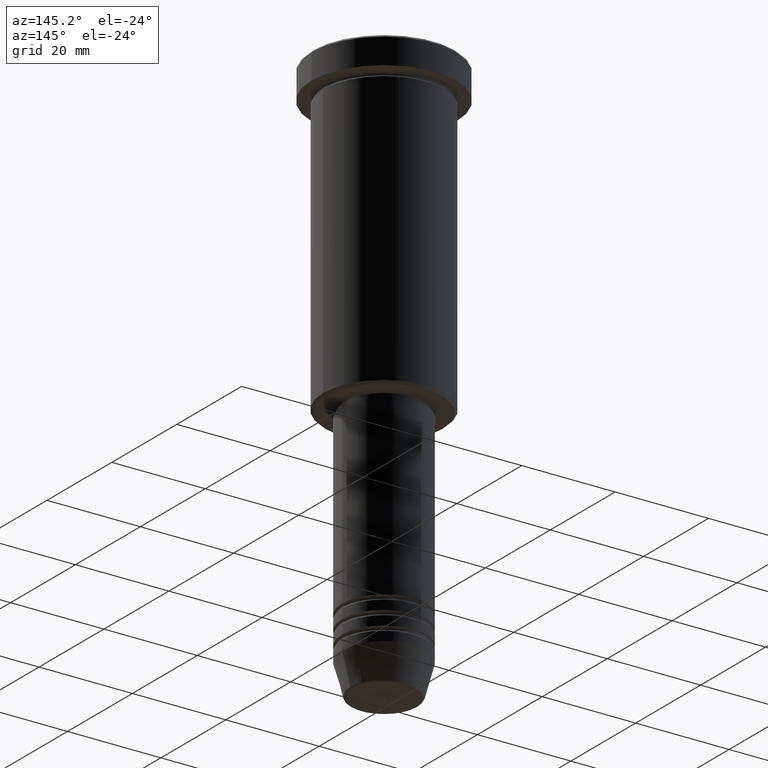
[diagram: clean part render]
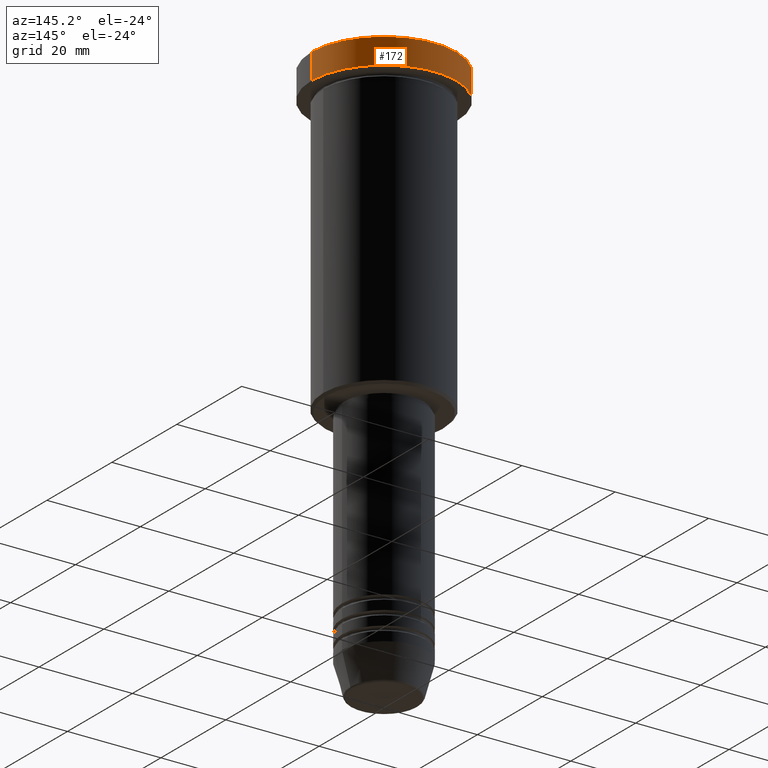
[diagram: same view with one face highlighted and labeled with its STEP entity id]
A machine part, auxiliary view. The second image highlights one B-rep face of the part: STEP entity #172.
In plain terms, the highlighted cylindrical surface (partial cylindrical patch) has radius 15.5 mm, axis along (-0, -0, 1).
Its self-contained STEP definition (entity closure, byte-faithful):
#103 = EDGE_CURVE ( 'NONE', #772, #297, #177, .T. ) ;
#160 = VECTOR ( 'NONE', #280, 1000.000000000000000 ) ;
#172 = ADVANCED_FACE ( 'NONE', ( #1036 ), #972, .T. ) ;
#177 = LINE ( 'NONE', #1004, #1101 ) ;
#190 = DIRECTION ( 'NONE',  ( -0.000000000000000000, -0.000000000000000000, 1.000000000000000000 ) ) ;
#202 = ORIENTED_EDGE ( 'NONE', *, *, #819, .T. ) ;
#272 = VERTEX_POINT ( 'NONE', #507 ) ;
#280 = DIRECTION ( 'NONE',  ( -0.000000000000000000, -0.000000000000000000, 1.000000000000000000 ) ) ;
#297 = VERTEX_POINT ( 'NONE', #395 ) ;
#316 = AXIS2_PLACEMENT_3D ( 'NONE', #696, #341, #1151 ) ;
#341 = DIRECTION ( 'NONE',  ( 0.000000000000000000, 0.000000000000000000, -1.000000000000000000 ) ) ;
#347 = CARTESIAN_POINT ( 'NONE',  ( 0.000000000000000000, 0.000000000000000000, 0.000000000000000000 ) ) ;
#359 = EDGE_CURVE ( 'NONE', #652, #297, #563, .T. ) ;
#395 = CARTESIAN_POINT ( 'NONE',  ( 15.50000000000000000, 0.000000000000000000, -0.4999999999999848455 ) ) ;
#403 = ORIENTED_EDGE ( 'NONE', *, *, #359, .T. ) ;
#434 = ORIENTED_EDGE ( 'NONE', *, *, #623, .T. ) ;
#455 = AXIS2_PLACEMENT_3D ( 'NONE', #347, #466, #775 ) ;
#466 = DIRECTION ( 'NONE',  ( -0.000000000000000000, -0.000000000000000000, 1.000000000000000000 ) ) ;
#507 = CARTESIAN_POINT ( 'NONE',  ( -15.50000000000000000, 1.898202538678397557E-15, -5.999999999999995559 ) ) ;
#510 = DIRECTION ( 'NONE',  ( 1.000000000000000000, 0.000000000000000000, 0.000000000000000000 ) ) ;
#563 = CIRCLE ( 'NONE', #316, 15.50000000000000000 ) ;
#578 = CARTESIAN_POINT ( 'NONE',  ( -15.50000000000000000, 1.898202538678397557E-15, -0.4999999999999848455 ) ) ;
#613 = CARTESIAN_POINT ( 'NONE',  ( 0.000000000000000000, 0.000000000000000000, -5.999999999999995559 ) ) ;
#623 = EDGE_CURVE ( 'NONE', #272, #652, #1183, .T. ) ;
#652 = VERTEX_POINT ( 'NONE', #578 ) ;
#691 = DIRECTION ( 'NONE',  ( -0.000000000000000000, -0.000000000000000000, 1.000000000000000000 ) ) ;
#696 = CARTESIAN_POINT ( 'NONE',  ( 0.000000000000000000, 0.000000000000000000, -0.4999999999999848455 ) ) ;
#772 = VERTEX_POINT ( 'NONE', #963 ) ;
#775 = DIRECTION ( 'NONE',  ( 1.000000000000000000, 0.000000000000000000, 0.000000000000000000 ) ) ;
#819 = EDGE_CURVE ( 'NONE', #772, #272, #883, .T. ) ;
#883 = CIRCLE ( 'NONE', #1116, 15.50000000000000000 ) ;
#939 = EDGE_LOOP ( 'NONE', ( #202, #434, #403, #1002 ) ) ;
#963 = CARTESIAN_POINT ( 'NONE',  ( 15.50000000000000000, 0.000000000000000000, -5.999999999999995559 ) ) ;
#972 = CYLINDRICAL_SURFACE ( 'NONE', #455, 15.50000000000000000 ) ;
#1002 = ORIENTED_EDGE ( 'NONE', *, *, #103, .F. ) ;
#1004 = CARTESIAN_POINT ( 'NONE',  ( 15.50000000000000000, 0.000000000000000000, 0.000000000000000000 ) ) ;
#1036 = FACE_OUTER_BOUND ( 'NONE', #939, .T. ) ;
#1099 = CARTESIAN_POINT ( 'NONE',  ( -15.50000000000000000, 1.898202538678397557E-15, 0.000000000000000000 ) ) ;
#1101 = VECTOR ( 'NONE', #190, 1000.000000000000000 ) ;
#1116 = AXIS2_PLACEMENT_3D ( 'NONE', #613, #691, #510 ) ;
#1151 = DIRECTION ( 'NONE',  ( 1.000000000000000000, 0.000000000000000000, 0.000000000000000000 ) ) ;
#1183 = LINE ( 'NONE', #1099, #160 ) ;